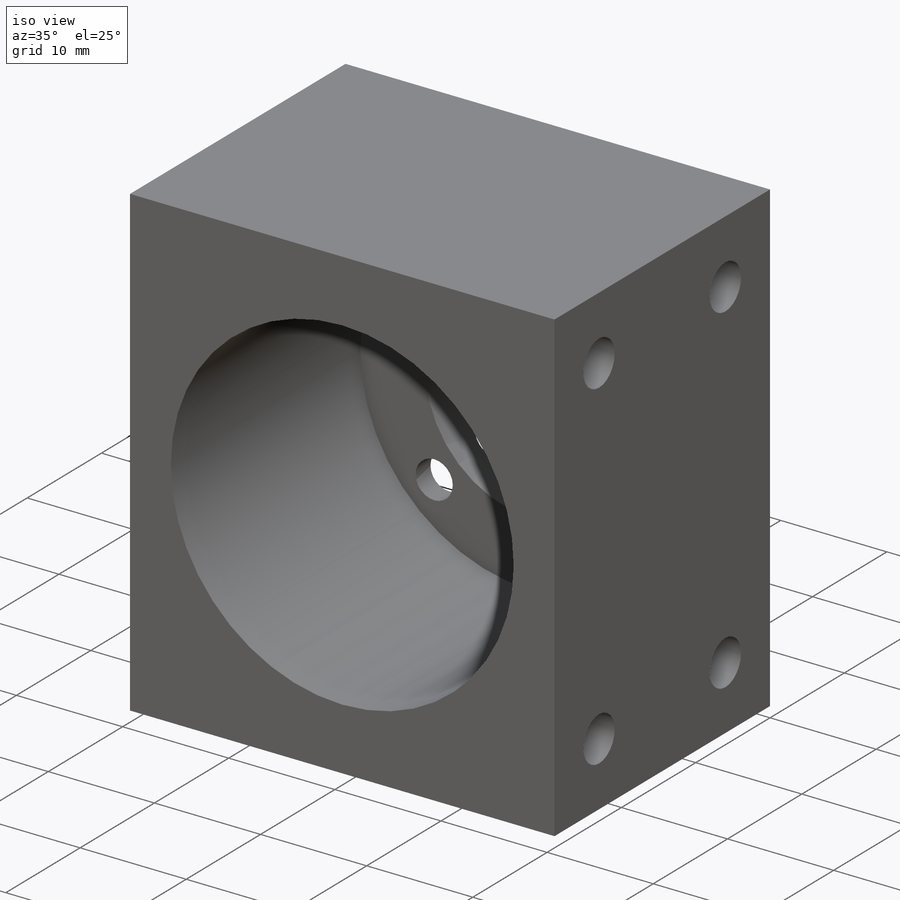
[diagram: iso view]
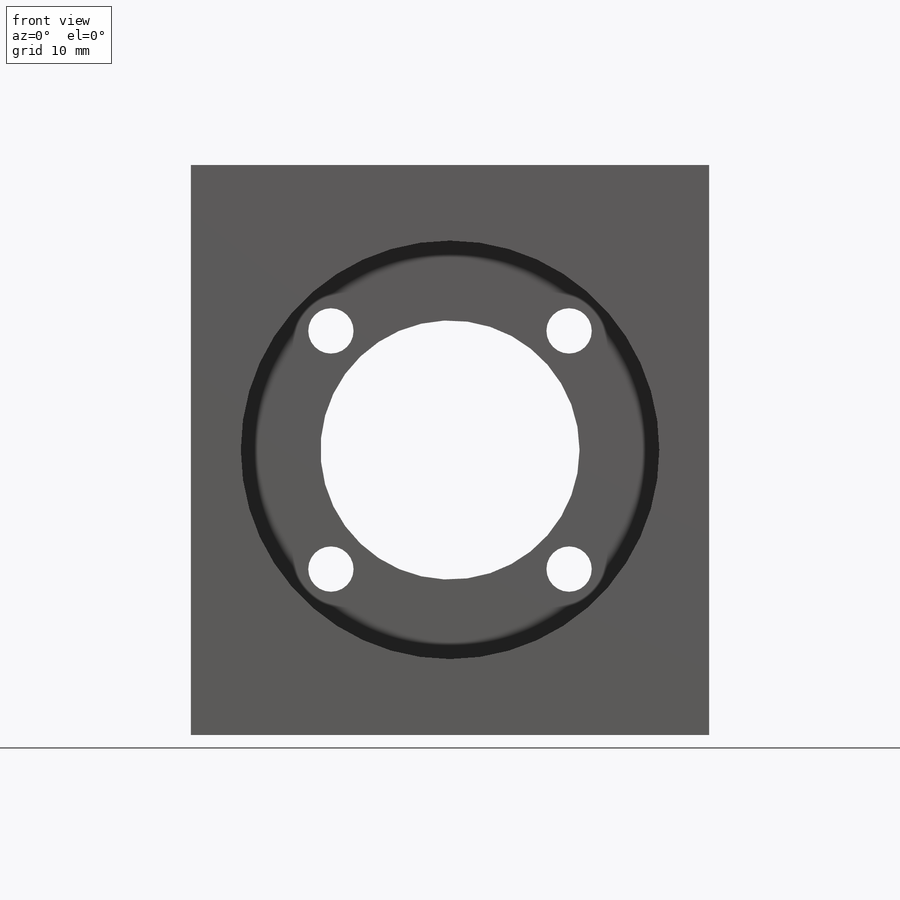
[diagram: front view]
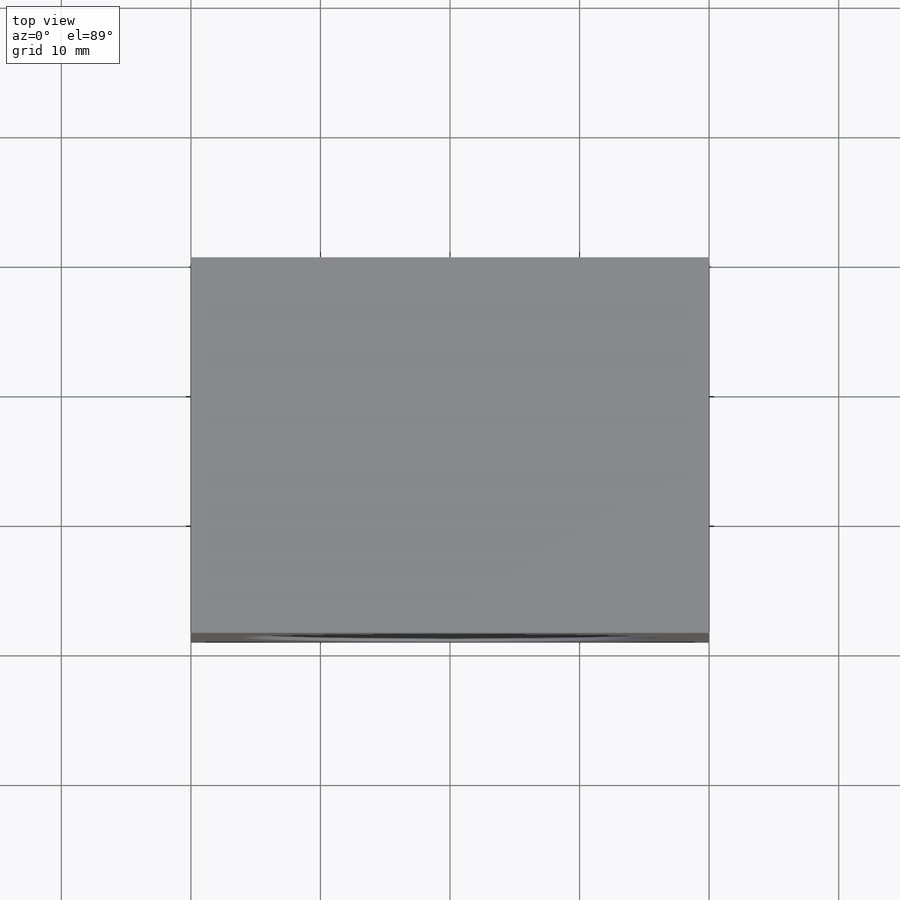
[diagram: top view]
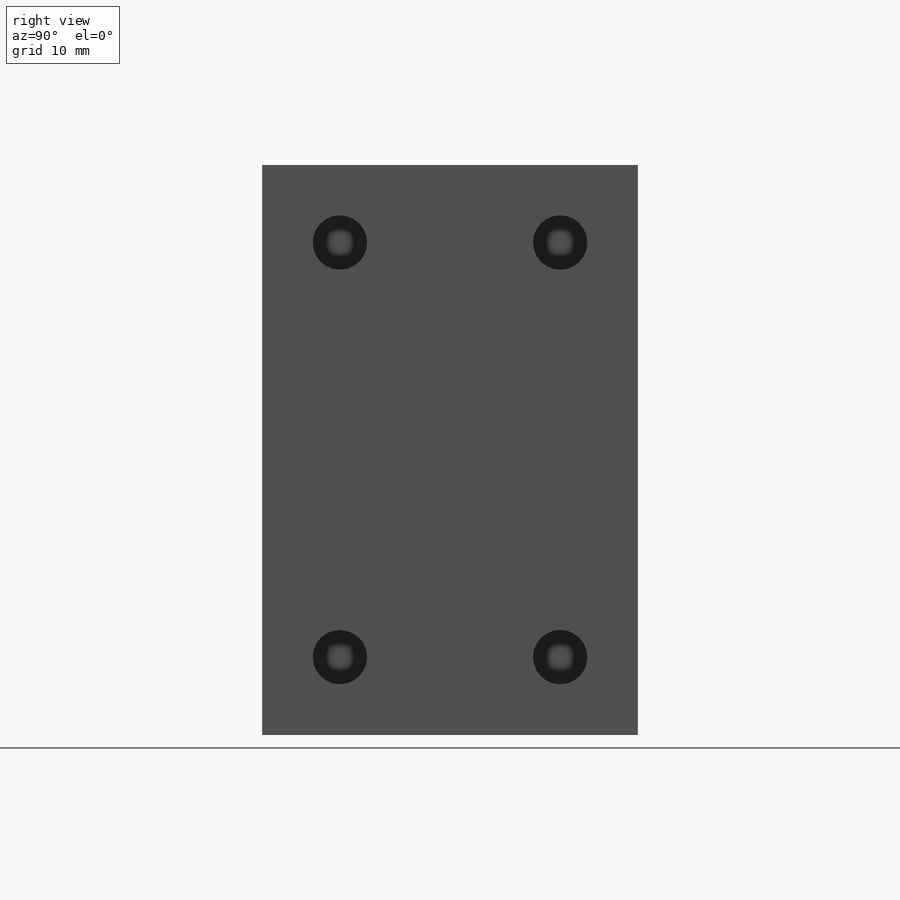
[diagram: right view]
SOLIDWORKS PART (.sldprt)
format: sldprt  version: not decoded by parser v0  size: 244,224 bytes
history: native  units: mm
features: sketch x5, cut_extrude x4, plane x3, material x1, extrude x1, mirror x1, chamfer x1 (+13 scaffold rows collapsed)
feature tree (29):
  scaffold x13  (default folders/planes/origin — collapsed)
  material  "Matériau <non spécifié>"
  plane  "Plan de face"
  plane  "Plan de dessus"
  plane  "Plan de droite"
  sketch  "Esquisse1"  dims[D4=32.0mm D1=20.0mm D2=44.0mm D3=22.0mm]
  extrude  "Boss.-Extru.1"  Depth=29mm
  sketch  "Esquisse2"  dims[D1=32.3mm]
  cut_extrude  "Enlèv. mat.-Extru.1"  Depth=25.5mm
  sketch  "Esquisse3"  dims[D1=20.0mm]
  cut_extrude  "Enlèv. mat.-Extru.2"  [1 undecoded]
  sketch  "Esquisse4"  dims[c1.D1=26.0mm c1.D3=~1.693918mm c1.D2=~1.453382mm c2.D3=3.5mm c2.D1=~17.949263mm c3.D1=45.0deg c3.D2=4.0]
  cut_extrude  "Enlèv. mat.-Extru.3"  [1 undecoded]
  sketch  "Esquisse5"  dims[c1.D1=4.2mm c1.D2=4.2mm c1.D3=4.2mm c1.D5=4.2mm c1.D6=4.2mm c1.D7=4.2mm c1.D8=4.2mm c1.D9=4.2mm c2.D3=6.0mm c2.D4=6.0mm c2.D5=6.0mm c2.D6=6.0mm c2.D9=6.0mm c2.D10=6.0mm c2.D11=6.0mm c2.D12=6.0mm]
  cut_extrude  "Enlèv. mat.-Extru.4"  Depth=11mm
  mirror  "Symétrie1"
  chamfer  "Chanfrein1"  Distance=1.5mm Angle=45deg
decode coverage: 9 of 12 modeling features carry decoded parameters
note: ~ marks probable driven/reference dimensions
note: 2 parameter values undecoded
note: suppression state not decoded; provenance and decode notes live in map.json
